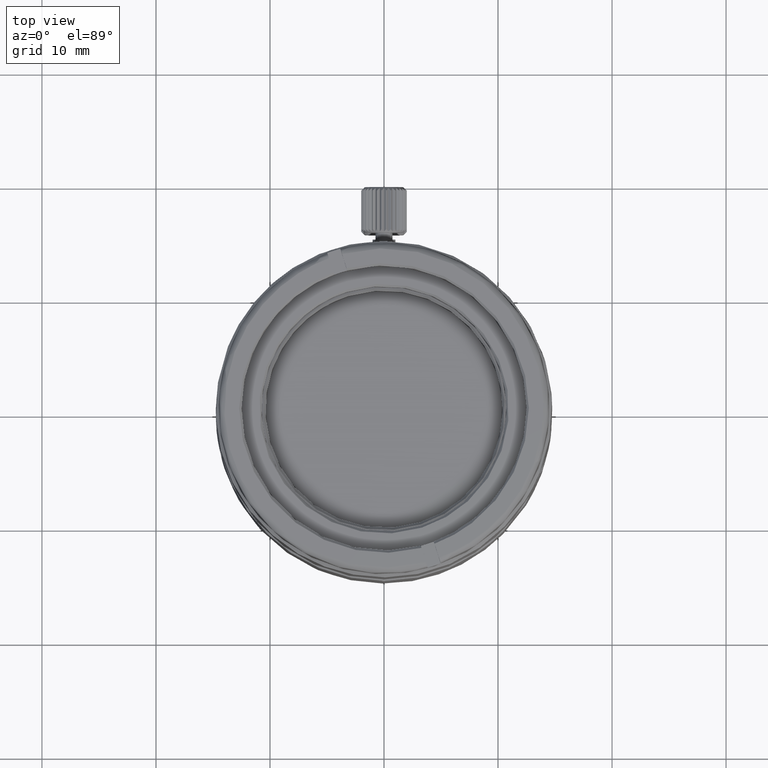
[diagram: clean part render]
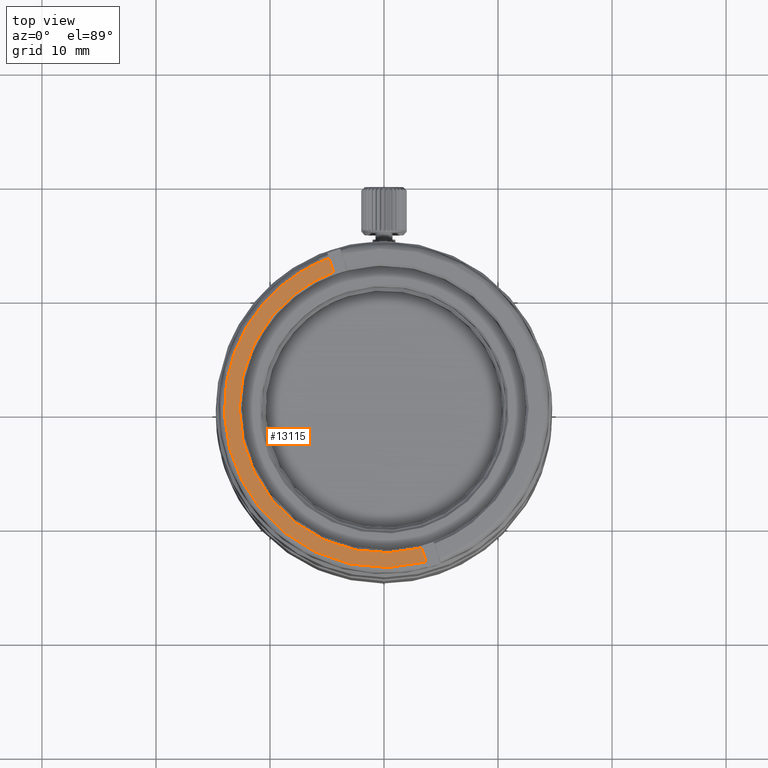
[diagram: same view with one face highlighted and labeled with its STEP entity id]
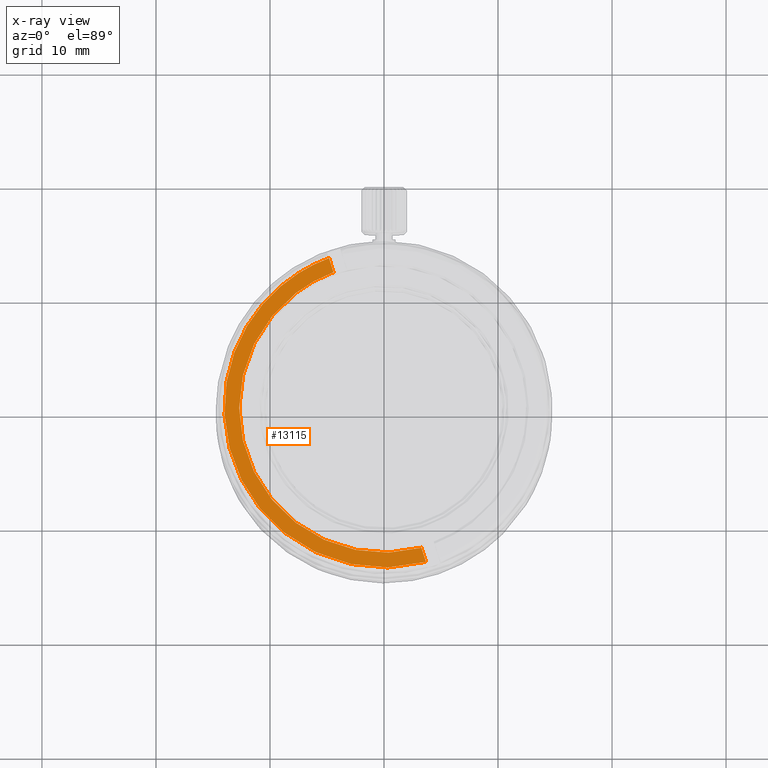
[diagram: x-ray of the same camera — body ghosted, the highlighted face saturated]
A machine part, top view. The second image highlights one B-rep face of the part: STEP entity #13115.
The next image is the same camera in x-ray: the body ghosted, the highlighted face saturated — about 0% of this face is hidden behind the body in this view.
In plain terms, the highlighted face is a freeform B-spline surface patch.
Its self-contained STEP definition (entity closure, byte-faithful):
#216 = CARTESIAN_POINT ( 'NONE',  ( -9.110061707999999925, -17.76592164800000262, 24.49405000000000143 ) ) ;
#330 = CARTESIAN_POINT ( 'NONE',  ( -11.77378247609233419, 4.829281470589188885, 24.49404999999999433 ) ) ;
#511 = CARTESIAN_POINT ( 'NONE',  ( -2.313296767717000435, -12.51369535586315074, 24.49405000000000499 ) ) ;
#2676 = CARTESIAN_POINT ( 'NONE',  ( -4.640225848390699070, -11.84956614780959860, 24.49405000000000143 ) ) ;
#2863 = CARTESIAN_POINT ( 'NONE',  ( -10.31091152274524880, -7.458486249307453519, 24.49405000000000499 ) ) ;
#3243 = CARTESIAN_POINT ( 'NONE',  ( -6.799370820828451123, -10.75697309033114024, 24.49404999999998722 ) ) ;
#3431 = CARTESIAN_POINT ( 'NONE',  ( -10.76184509010595924, -6.791656943773321409, 24.49405000000000499 ) ) ;
#4114 = CARTESIAN_POINT ( 'NONE',  ( 3.681115083969284996, -13.50738285817907958, 24.49405000008874822 ) ) ;
#4696 = ORIENTED_EDGE ( 'NONE', *, *, #21692, .T. ) ;
#5773 = CARTESIAN_POINT ( 'NONE',  ( -9.676687419286809089, 8.264722266277313878, 24.49405000000000143 ) ) ;
#6034 = FACE_OUTER_BOUND ( 'NONE', #34044, .T. ) ;
#6101 = CARTESIAN_POINT ( 'NONE',  ( -29.01198377817256713, 4.263818038674846100, 24.49405000026619916 ) ) ;
#6152 = CARTESIAN_POINT ( 'NONE',  ( -3.099846646474872625, -12.34240109733587509, 24.49405000000000143 ) ) ;
#6343 = CARTESIAN_POINT ( 'NONE',  ( -12.34462032632597683, -3.090997035809846416, 24.49405000000000499 ) ) ;
#6481 = CARTESIAN_POINT ( 'NONE',  ( -4.824304539534809422, 13.14252965168643961, 24.49405000008874822 ) ) ;
#6532 = CARTESIAN_POINT ( 'NONE',  ( -5.380130690147320038, -11.53248052483288255, 24.49405000000000143 ) ) ;
#7798 = CARTESIAN_POINT ( 'NONE',  ( 3.285456682607044598, -12.26767192338841994, 24.49405000000000143 ) ) ;
#8687 = CARTESIAN_POINT ( 'NONE',  ( -12.60901186090062964, 1.719515477568448025, 24.49405000000000143 ) ) ;
#8881 = CARTESIAN_POINT ( 'NONE',  ( -10.64677270396780173, 6.970663190954046406, 24.49405000000000499 ) ) ;
#10828 = CARTESIAN_POINT ( 'NONE',  ( -4.428646143009134839, 11.90281871524194024, 24.49405000000000143 ) ) ;
#11759 = CARTESIAN_POINT ( 'NONE',  ( 3.681115083969284552, -13.50738285817907958, 24.49405000008874822 ) ) ;
#11807 = CARTESIAN_POINT ( 'NONE',  ( -5.186536320551152102, 11.62083278739543601, 24.49404999999999433 ) ) ;
#12257 = CARTESIAN_POINT ( 'NONE',  ( -4.875337059000000473, 13.30242912900000007, 24.49405000000000143 ) ) ;
#13115 = ADVANCED_FACE ( 'NONE', ( #6034 ), #15379, .T. ) ;
#13118 = ORIENTED_EDGE ( 'NONE', *, *, #23057, .F. ) ;
#14163 = CARTESIAN_POINT ( 'NONE',  ( 3.681115083969284996, -13.50738285817907958, 24.49405000008874822 ) ) ;
#14517 = CARTESIAN_POINT ( 'NONE',  ( -9.281666958346269425, -8.706007802255376404, 24.49405000000000854 ) ) ;
#14702 = CARTESIAN_POINT ( 'NONE',  ( -11.06619169816922721, 6.283575013519559604, 24.49404999999999433 ) ) ;
#14895 = CARTESIAN_POINT ( 'NONE',  ( -12.70654152492688560, -0.6983667666147634900, 24.49405000000000499 ) ) ;
#15159 = CARTESIAN_POINT ( 'NONE',  ( 3.732147601000000314, -13.66728233600000131, 24.49405000000000143 ) ) ;
#15184 = VERTEX_POINT ( 'NONE', #28013 ) ;
#15379 = B_SPLINE_SURFACE_WITH_KNOTS ( 'NONE', 1, 1, ( 
 ( #216, #27167 ),
 ( #15159, #12257 ) ),
 .UNSPECIFIED., .F., .F., .F.,
 ( 2, 2 ),
 ( 2, 2 ),
 ( 0.0000000000000000000, 1.000000000000000000 ),
 ( 0.0000000000000000000, 1.000000000000000000 ),
 .UNSPECIFIED. ) ;
#15954 = EDGE_CURVE ( 'NONE', #32252, #16909, #22710, .T. ) ;
#16909 = VERTEX_POINT ( 'NONE', #32384 ) ;
#17125 = VERTEX_POINT ( 'NONE', #36193 ) ;
#17618 = CARTESIAN_POINT ( 'NONE',  ( -9.134790406658847672, 8.859995357117350423, 24.49405000000000143 ) ) ;
#17947 = EDGE_CURVE ( 'NONE', #16909, #17125, #20359, .T. ) ;
#17996 = CARTESIAN_POINT ( 'NONE',  ( -7.292506813078937000, 10.42896248246435142, 24.49405000000000499 ) ) ;
#18179 = CARTESIAN_POINT ( 'NONE',  ( -12.51535066283353537, -2.304324530534414439, 24.49405000000000499 ) ) ;
#20359 = B_SPLINE_CURVE_WITH_KNOTS ( 'NONE', 3,
 ( #38164, #23432, #26534, #35445, #21278, #511, #6152, #2676, #6532, #3243, #35259, #32912, #14517, #2863, #3431, #35638, #20705, #6343, #18179, #14895, #29434, #8687, #20518, #32347, #330, #14702, #8881, #5773, #17618, #38350, #17996, #26910, #11807, #23813 ),
 .UNSPECIFIED., .F., .F.,
 ( 4, 2, 2, 2, 2, 2, 2, 2, 2, 2, 2, 2, 2, 2, 2, 2, 4 ),
 ( 0.0000000000000000000, 0.1904418299752971555, 0.3808836599505943110, 0.5713254899258914943, 0.7617673199011890661, 0.9522091498764864159, 1.142650979851783655, 1.333092809827080893, 1.523534639802378132, 1.713976469777675149, 1.904418299752972388, 2.094860129728269627, 2.285301959703566421, 2.475743789678863660, 2.666185619654160899, 2.856627449629458138, 3.047069279604755376 ),
 .UNSPECIFIED. ) ;
#20518 = CARTESIAN_POINT ( 'NONE',  ( -12.47506868616295073, 2.513279716462198721, 24.49405000000000499 ) ) ;
#20705 = CARTESIAN_POINT ( 'NONE',  ( -11.85288987682190154, -4.631729185113115044, 24.49405000000000499 ) ) ;
#21225 = CARTESIAN_POINT ( 'NONE',  ( -21.17804464604264325, -20.28215402741465923, 24.49405000026620982 ) ) ;
#21239 = ORIENTED_EDGE ( 'NONE', *, *, #15954, .T. ) ;
#21278 = CARTESIAN_POINT ( 'NONE',  ( -0.7074764715387931169, -12.70603756471938972, 24.49405000000000499 ) ) ;
#21692 = EDGE_CURVE ( 'NONE', #17125, #15184, #24718, .T. ) ;
#22710 = B_SPLINE_CURVE_WITH_KNOTS ( 'NONE', 1,
 ( #4114, #7798 ),
 .UNSPECIFIED., .F., .F.,
 ( 2, 2 ),
 ( 0.0000000000000000000, 1.000000000000000000 ),
 .UNSPECIFIED. ) ;
#23057 = EDGE_CURVE ( 'NONE', #32252, #15184, #28363, .T. ) ;
#23432 = CARTESIAN_POINT ( 'NONE',  ( 2.504335146187970373, -12.47686736126885521, 24.49405000000000499 ) ) ;
#23813 = CARTESIAN_POINT ( 'NONE',  ( -4.428646143009134839, 11.90281871524194024, 24.49405000000000143 ) ) ;
#24718 = B_SPLINE_CURVE_WITH_KNOTS ( 'NONE', 1,
 ( #10828, #34480 ),
 .UNSPECIFIED., .F., .F.,
 ( 2, 2 ),
 ( 0.0000000000000000000, 1.000000000000000000 ),
 .UNSPECIFIED. ) ;
#25315 = ORIENTED_EDGE ( 'NONE', *, *, #17947, .T. ) ;
#26534 = CARTESIAN_POINT ( 'NONE',  ( 1.710475090638599927, -12.61024144041738104, 24.49405000000000143 ) ) ;
#26910 = CARTESIAN_POINT ( 'NONE',  ( -5.910886490323101761, 11.26966435381610765, 24.49405000000000143 ) ) ;
#27167 = CARTESIAN_POINT ( 'NONE',  ( -17.71754636899999724, 9.203789816999998763, 24.49405000000000143 ) ) ;
#28013 = CARTESIAN_POINT ( 'NONE',  ( -4.824304539534809422, 13.14252965168643961, 24.49405000008874822 ) ) ;
#28363 =( BOUNDED_CURVE ( )  B_SPLINE_CURVE ( 3, ( #11759, #21225, #6101, #6481 ),
 .UNSPECIFIED., .F., .F. ) 
 B_SPLINE_CURVE_WITH_KNOTS ( ( 4, 4 ),
 ( 0.0000000000000000000, 3.055852107077114965 ),
 .UNSPECIFIED. ) 
 CURVE ( )  GEOMETRIC_REPRESENTATION_ITEM ( )  RATIONAL_B_SPLINE_CURVE ( ( 0.9383972337661943275, 0.3396104272766298782, 0.3396104272766297671, 0.9383972337661938834 ) ) 
 REPRESENTATION_ITEM ( '' )  );
#29434 = CARTESIAN_POINT ( 'NONE',  ( -12.72527375426702534, 0.1064012382847154270, 24.49405000000000499 ) ) ;
#32252 = VERTEX_POINT ( 'NONE', #14163 ) ;
#32347 = CARTESIAN_POINT ( 'NONE',  ( -12.05555788057692901, 4.075222432753486501, 24.49405000000000143 ) ) ;
#32384 = CARTESIAN_POINT ( 'NONE',  ( 3.285456682607044598, -12.26767192338841994, 24.49405000000000143 ) ) ;
#32912 = CARTESIAN_POINT ( 'NONE',  ( -8.712660000656747172, -9.275422867443440467, 24.49405000000000143 ) ) ;
#34044 = EDGE_LOOP ( 'NONE', ( #21239, #25315, #4696, #13118 ) ) ;
#34480 = CARTESIAN_POINT ( 'NONE',  ( -4.824304539534809422, 13.14252965168643961, 24.49405000008874822 ) ) ;
#35259 = CARTESIAN_POINT ( 'NONE',  ( -7.465876682930467467, -10.30556155885325786, 24.49404999999999433 ) ) ;
#35445 = CARTESIAN_POINT ( 'NONE',  ( 0.09727791040563793512, -12.72534677835132300, 24.49405000000000143 ) ) ;
#35638 = CARTESIAN_POINT ( 'NONE',  ( -11.53633482957732959, -5.371861166705799384, 24.49405000000000499 ) ) ;
#36193 = CARTESIAN_POINT ( 'NONE',  ( -4.428646143009134839, 11.90281871524194024, 24.49405000000000143 ) ) ;
#38164 = CARTESIAN_POINT ( 'NONE',  ( 3.285456682607044598, -12.26767192338841994, 24.49405000000000143 ) ) ;
#38350 = CARTESIAN_POINT ( 'NONE',  ( -7.937287589460547466, 9.947028661548843687, 24.49404999999998722 ) ) ;